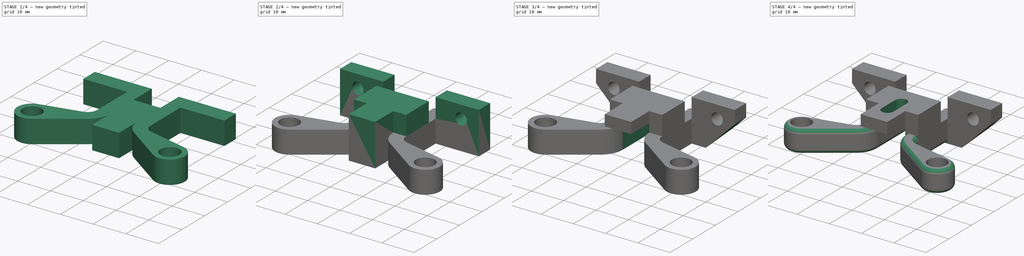
[diagram: build sequence overview — one tinted view per stage of 4, left to right]
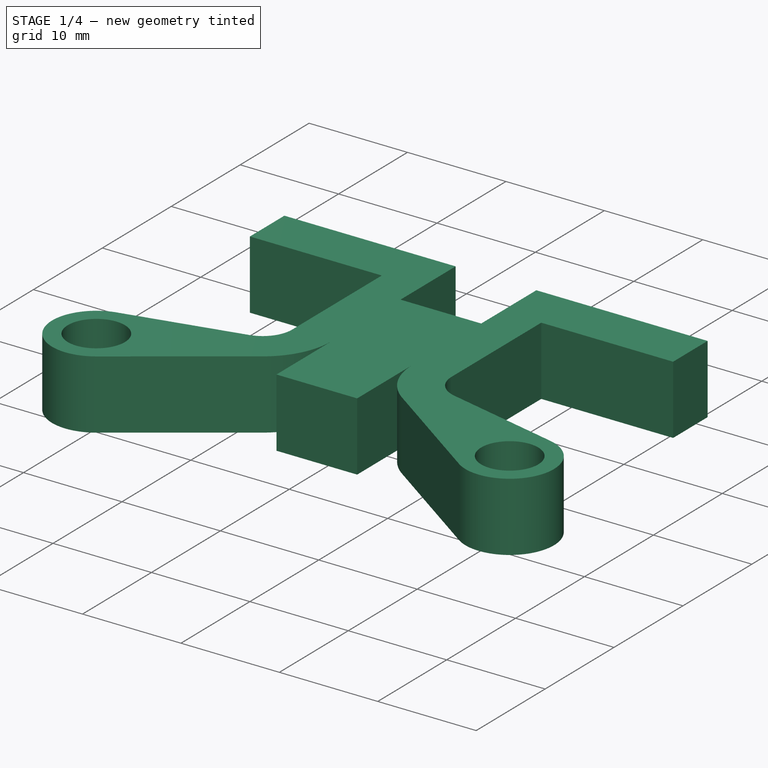
[diagram: stage 1 of 4 — iso view after this stage's code; geometry added in this stage tinted green]
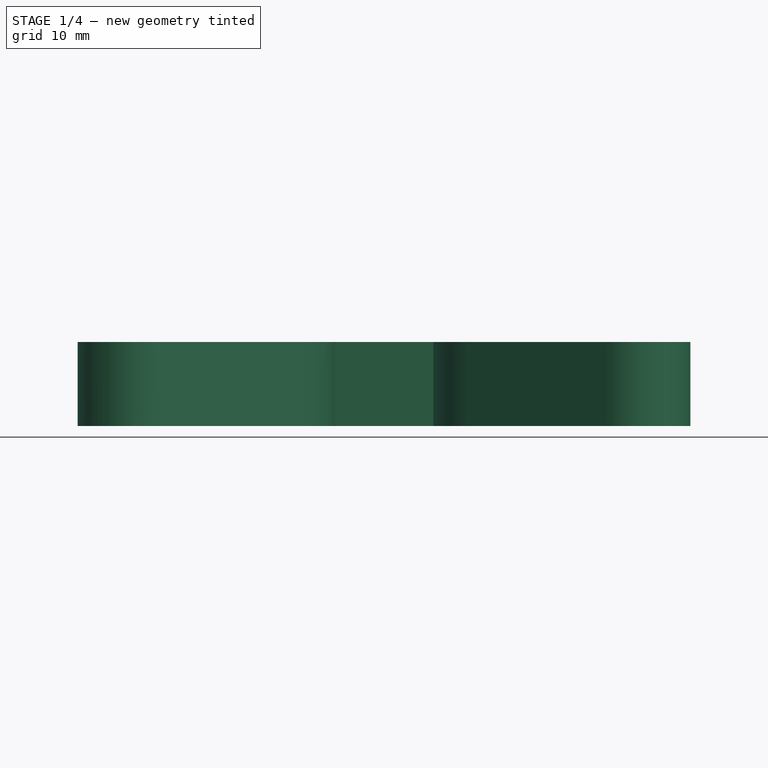
[diagram: stage 1 of 4 — front view after this stage's code; geometry added in this stage tinted green]
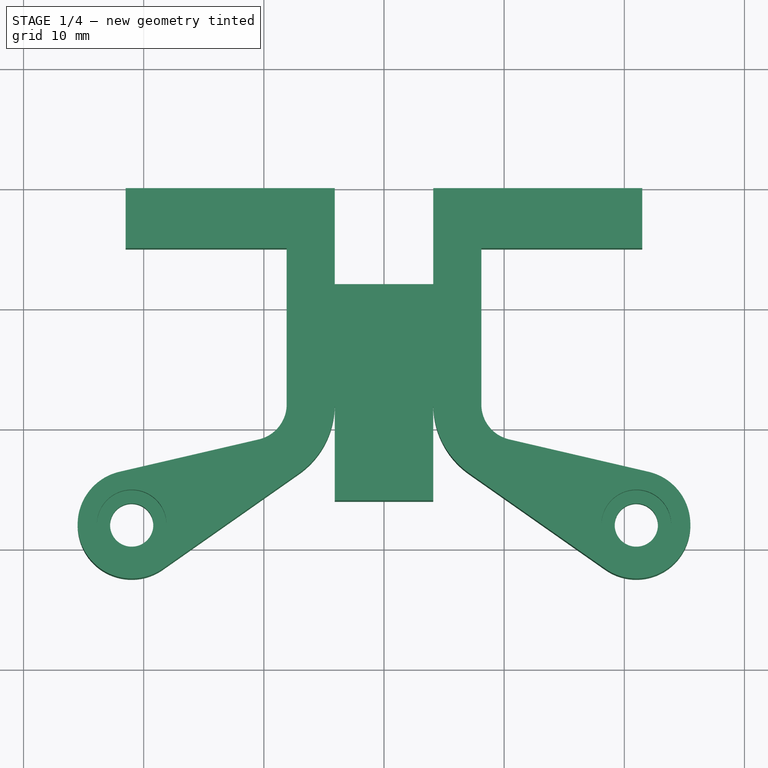
[diagram: stage 1 of 4 — top view after this stage's code; geometry added in this stage tinted green]
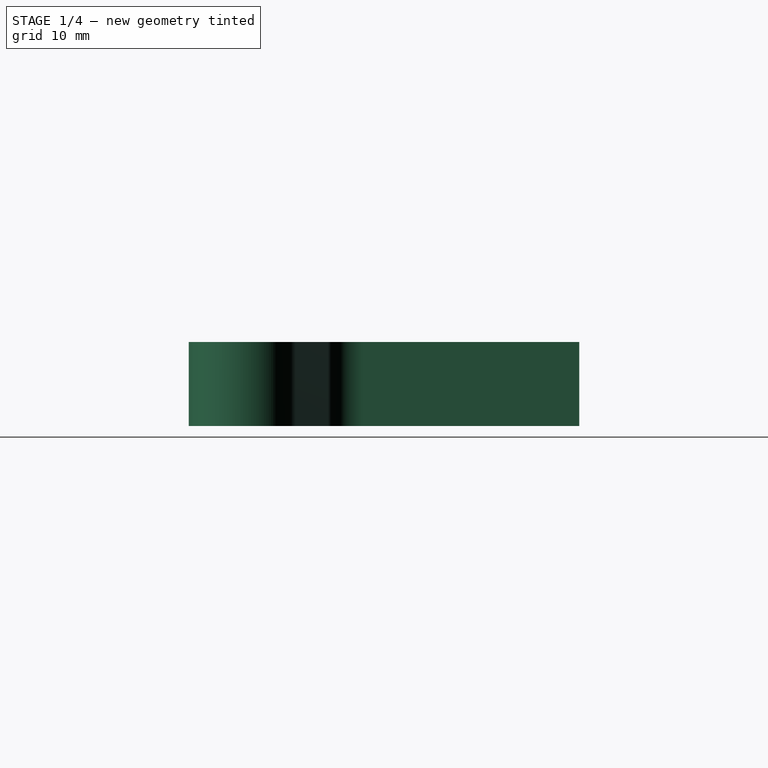
[diagram: stage 1 of 4 — right view after this stage's code; geometry added in this stage tinted green]
FCSTD DOCUMENT  (FreeCAD 1.0R39319 (Git))
Label: Dragon_GX-H8A_Rev
License: All rights reserved
LicenseURL: https://en.wikipedia.org/wiki/All_rights_reserved
objects: Sketcher::SketchObject×9, PartDesign::Pocket×6, PartDesign::Pad×3, App::VarSet×1, PartDesign::Fillet×1, PartDesign::Body×1
note: 49 computed .brp shape members not serialized (recipe doc carries the construction recipe); baked Part::Feature solids carry a one-line shape summary decoded from their .brp

FEATURE [App::VarSet] VarSet
  BaseScrewDistance = 42
  BaseScrewExternalDiameter = 9
  BaseScrewFromTop = 28
  M3HeadDiameter = 5.8
  M3HeadHeight = 3
  M3PassThroughDiameter = 3.6
  M3SelfTappingDiameter = 2.9
  SensorFixingThickness = 3.4
  SensorHeight = 13
  SensorLength = 18
  SensorOffset = 8
  SensorSupportHeight = 18
  SensorWall = 4
  SensorWidth = 8.2
  StructureHeight = 7
  TopHeight = 13
  TopScrewDistance = 32
  TopScrewFromBase = 9
  TopThickness = 5
  TopWidth = 43
FEATURE [Sketcher::SketchObject] Sketch
  ArcFitTolerance = 1e-06
  AttachmentSupport = -> [XY_Plane]
  FullyConstrained = true
  MakeInternals = false
  MapMode = 5
  expr: Constraints[21] = VarSet.SensorWidth + 2 * VarSet.SensorWall
  expr: Constraints[22] = VarSet.SensorSupportHeight - VarSet.TopThickness
  expr: Constraints[25] = VarSet.M3PassThroughDiameter
  expr: Constraints[31] = VarSet.BaseScrewFromTop
  expr: Constraints[32] = VarSet.BaseScrewDistance
  expr: Constraints[36] = VarSet.BaseScrewExternalDiameter
  expr: Constraints[42] = VarSet.SensorWall
  expr: Constraints[6] = VarSet.TopWidth
  expr: Constraints[75] = VarSet.SensorOffset
  expr: Constraints[7] = VarSet.TopThickness
  expr: Constraints[84] = VarSet.SensorLength
  sketch-geometry (35):
    g0: LineSegment StartX=-21.5 StartY=0 StartZ=0 EndX=-21.5 EndY=-5 EndZ=0
    g1: LineSegment StartX=21.5 StartY=-5 StartZ=0 EndX=21.5 EndY=0 EndZ=0
    g2: LineSegment [constr] StartX=21.5 StartY=0 StartZ=0 EndX=-21.5 EndY=0 EndZ=0
    g3: LineSegment StartX=-8.1 StartY=-5 StartZ=0 EndX=-8.1 EndY=-18 EndZ=0
    g4: LineSegment StartX=8.1 StartY=-5 StartZ=0 EndX=8.1 EndY=-18 EndZ=0
    g5: LineSegment StartX=21.5 StartY=-5 StartZ=0 EndX=8.1 EndY=-5 EndZ=0
    g6: LineSegment StartX=-21.5 StartY=-5 StartZ=0 EndX=-8.1 EndY=-5 EndZ=0
    g7: LineSegment [constr] StartX=-8.1 StartY=-5 StartZ=0 EndX=8.1 EndY=-5 EndZ=0
    g8: Circle CenterX=-21 CenterY=-28 CenterZ=0 NormalX=0 NormalY=0 NormalZ=1 AngleXU=0 Radius=1.8
    g9: Circle CenterX=21 CenterY=-28 CenterZ=0 NormalX=0 NormalY=0 NormalZ=1 AngleXU=0 Radius=1.8
    g10: LineSegment [constr] StartX=21 StartY=-28 StartZ=0 EndX=21 EndY=0 EndZ=0
    g11: LineSegment [constr] StartX=21 StartY=-28 StartZ=0 EndX=-21 EndY=-28 EndZ=0
    g12: ArcOfCircle CenterX=21 CenterY=-28 CenterZ=0 NormalX=0 NormalY=0 NormalZ=1 AngleXU=0 Radius=4.5 StartAngle=4.10058 EndAngle=7.62569
    g13: ArcOfCircle CenterX=-21 CenterY=-28 CenterZ=0 NormalX=0 NormalY=0 NormalZ=1 AngleXU=0 Radius=4.5 StartAngle=1.79909 EndAngle=5.3242
    g14: LineSegment [constr] StartX=-8.1 StartY=-18 StartZ=0 EndX=-4.1 EndY=-18 EndZ=0
    g15: LineSegment [constr] StartX=8.1 StartY=-18 StartZ=0 EndX=4.1 EndY=-18 EndZ=0
    g16: LineSegment StartX=7.07954 StartY=-23.7303 StartZ=0 EndX=18.4154 EndY=-31.6837 EndZ=0
    g17: LineSegment StartX=-7.07954 StartY=-23.7303 StartZ=0 EndX=-18.4154 EndY=-31.6837 EndZ=0
    g18: LineSegment [constr] StartX=-8.1 StartY=-18 StartZ=0 EndX=-11.1 EndY=-18 EndZ=0
    g19: LineSegment [constr] StartX=8.1 StartY=-18 StartZ=0 EndX=11.1 EndY=-18 EndZ=0
    g20: ArcOfCircle CenterX=-11.1 CenterY=-18 CenterZ=0 NormalX=0 NormalY=0 NormalZ=1 AngleXU=0 Radius=3 StartAngle=4.94068 EndAngle=6.28319
    g21: ArcOfCircle CenterX=11.1 CenterY=-18 CenterZ=0 NormalX=0 NormalY=0 NormalZ=1 AngleXU=0 Radius=3 StartAngle=3.14159 EndAngle=4.48409
    g22: LineSegment StartX=-10.421 StartY=-20.9222 StartZ=0 EndX=-22.0184 EndY=-23.6168 EndZ=0
    g23: LineSegment StartX=10.421 StartY=-20.9222 StartZ=0 EndX=22.0184 EndY=-23.6168 EndZ=0
    g24: ArcOfCircle CenterX=-11.1 CenterY=-18 CenterZ=0 NormalX=0 NormalY=0 NormalZ=1 AngleXU=0 Radius=7 StartAngle=5.3242 EndAngle=6.28319
    g25: ArcOfCircle CenterX=11.1 CenterY=-18 CenterZ=0 NormalX=0 NormalY=0 NormalZ=1 AngleXU=0 Radius=7 StartAngle=3.14159 EndAngle=4.10058
    g26: LineSegment StartX=-21.5 StartY=0 StartZ=0 EndX=-4.1 EndY=0 EndZ=0
    g27: LineSegment StartX=21.5 StartY=0 StartZ=0 EndX=4.1 EndY=0 EndZ=0
    g28: LineSegment StartX=-4.1 StartY=0 StartZ=0 EndX=-4.1 EndY=-8 EndZ=0
    g29: LineSegment StartX=4.1 StartY=0 StartZ=0 EndX=4.1 EndY=-8 EndZ=0
    g30: LineSegment StartX=-4.1 StartY=-18 StartZ=0 EndX=-4.1 EndY=-26 EndZ=0
    g31: LineSegment StartX=4.1 StartY=-18 StartZ=0 EndX=4.1 EndY=-26 EndZ=0
    g32: LineSegment StartX=-4.1 StartY=-26 StartZ=0 EndX=4.1 EndY=-26 EndZ=0
    g33: LineSegment StartX=-4.1 StartY=-8 StartZ=0 EndX=4.1 EndY=-8 EndZ=0
    g34: LineSegment [constr] StartX=-4.1 StartY=0 StartZ=0 EndX=4.1 EndY=0 EndZ=0
  constraints (90):
    c: Coincident(g1,g2)
    c: Coincident(g2,g0)
    c: Vertical(g0)
    c: Vertical(g1)
    c: PointOnObject(g0,g-1)
    c: Symmetric(g0,g1,g-1)
    c: Distance(g2) = 43
    c: Distance(g0) = 5
    c: Vertical(g3)
    c: Vertical(g4)
    c: Coincident(g5,g1)
    c: Horizontal(g5)
    c: Coincident(g6,g0)
    c: Horizontal(g6)
    c: Coincident(g3,g6)
    c: Coincident(g5,g4)
    c: Equal(g5,g6)
    c: Equal(g4,g3)
    c: Coincident(g7,g3)
    c: Coincident(g7,g4)
    c: Horizontal(g7)
    c: Distance(g7) = 16.2
    c: Distance(g4) = 13
    c: Symmetric(g9,g8,g-2)
    c: Equal(g9,g8)
    c: Diameter(g9) = 3.6
    c: Coincident(g10,g9)
    c: Vertical(g10)
    c: Coincident(g11,g9)
    c: Coincident(g11,g8)
    c: PointOnObject(g10,g-1)
    c: Distance(g10) = 28
    c: Distance(g11) = 42
    c: Coincident(g12,g9)
    c: Coincident(g13,g8)
    c: Equal(g12,g13)
    c: Diameter(g12) = 9
    c: Coincident(g14,g3)
    c: Horizontal(g14)
    c: Coincident(g15,g4)
    c: Horizontal(g15)
    c: Equal(g14,g15)
    c: Distance(g15) = 4
    c: Tangent(g16,g12) = -1.5708
    c: Tangent(g17,g13) = 1.5708
    c: Coincident(g18,g3)
    c: Horizontal(g18)
    c: Distance(g18) = 3
    c: Coincident(g19,g4)
    c: Horizontal(g19)
    c: Equal(g19,g18)
    c: Coincident(g20,g18)
    c: Coincident(g20,g3)
    c: Coincident(g21,g19)
    c: Coincident(g21,g4)
    c: Tangent(g23,g12) = 1.5708
    c: Tangent(g23,g21) = -1.5708
    c: Tangent(g22,g13) = -1.5708
    c: Tangent(g22,g20) = 1.5708
    c: Coincident(g24,g18)
    c: Coincident(g24,g14)
    c: Coincident(g25,g19)
    c: Coincident(g25,g15)
    c: Tangent(g17,g24) = 1.5708
    c: Tangent(g25,g16) = -1.5708
    c: Coincident(g26,g0)
    c: PointOnObject(g26,g2)
    c: Coincident(g27,g1)
    c: PointOnObject(g27,g2)
    c: Equal(g26,g27)
    c: Coincident(g28,g26)
    c: Vertical(g28)
    c: Coincident(g29,g27)
    c: Vertical(g29)
    c: Equal(g28,g29)
    c: Distance(g28) = 8
    c: Vertical(g30)
    c: Tangent(g30,g24)
    c: Vertical(g31)
    c: Coincident(g32,g30)
    c: Coincident(g32,g31)
    c: Coincident(g33,g28)
    c: Coincident(g33,g29)
    c: PointOnObject(g30,g14)
    c: DistanceY(g30,g28) = 18
    c: Horizontal(g32)
    c: Coincident(g15,g31)
    c: Coincident(g34,g26)
    c: Coincident(g34,g27)
    c: Equal(g34,g32)
FEATURE [PartDesign::Pad] Pad  label="Main Structure"
  Direction = (0,0,1)
  Length = 7
  Length2 = 10
  Profile = -> Sketch
  ReferenceAxis = -> Sketch [N_Axis]
  Refine = true
  Suppressed = false
  Type = 0
  expr: Length = VarSet.StructureHeight
FEATURE [Sketcher::SketchObject] Sketch001
  ArcFitTolerance = 1e-06
  AttachmentSupport = -> [Pad]
  ExternalGeometry = -> [Pad]
  FullyConstrained = true
  MakeInternals = false
  MapMode = 5
  Placement = pos=(0,0,7) rot=(0,0,1;0rad)
  expr: Constraints[3] = VarSet.M3HeadDiameter
  sketch-geometry (2):
    g0: Circle CenterX=-21 CenterY=-28 CenterZ=0 NormalX=0 NormalY=0 NormalZ=1 AngleXU=0 Radius=2.9
    g1: Circle CenterX=21 CenterY=-28 CenterZ=0 NormalX=0 NormalY=0 NormalZ=1 AngleXU=0 Radius=2.9
  constraints (4):
    c: Coincident(g0,g-4)
    c: Coincident(g1,g-3)
    c: Equal(g1,g0)
    c: Diameter(g1) = 5.8
FEATURE [PartDesign::Pocket] Pocket  label="Base Screws Head"
  BaseFeature = -> Pad
  Direction = (0,0,-1)
  Length = 3
  Length2 = 5
  Profile = -> Sketch001
  ReferenceAxis = -> Sketch001 [N_Axis]
  Refine = true
  Suppressed = false
  Type = 0
  expr: Length = VarSet.M3HeadHeight
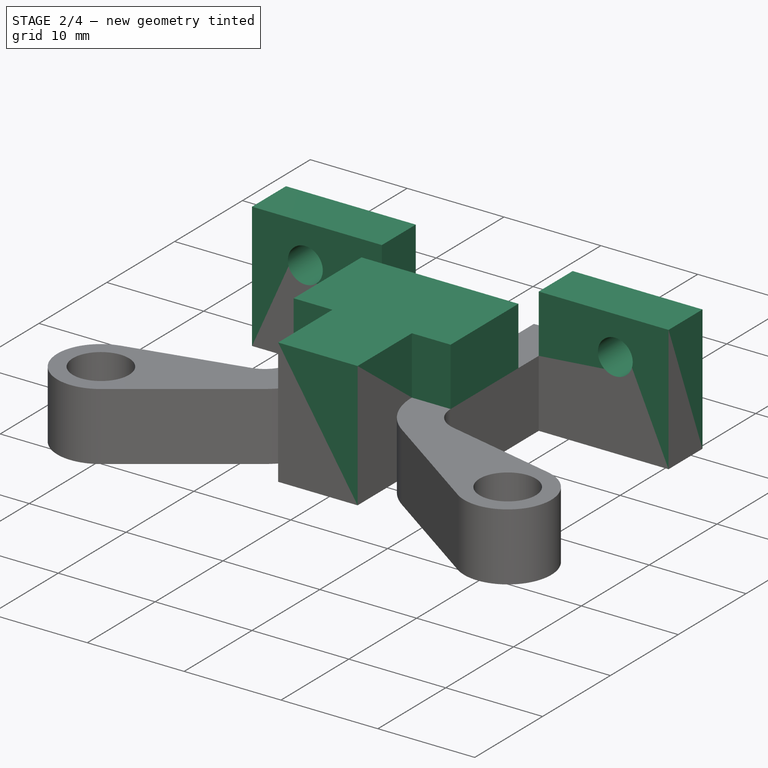
[diagram: stage 2 of 4 — iso view after this stage's code; geometry added in this stage tinted green]
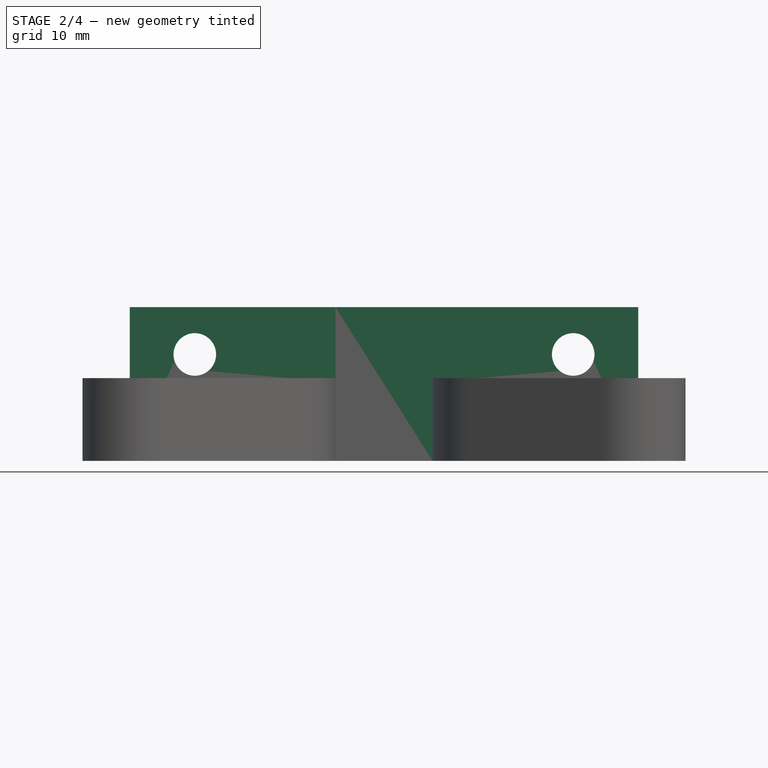
[diagram: stage 2 of 4 — front view after this stage's code; geometry added in this stage tinted green]
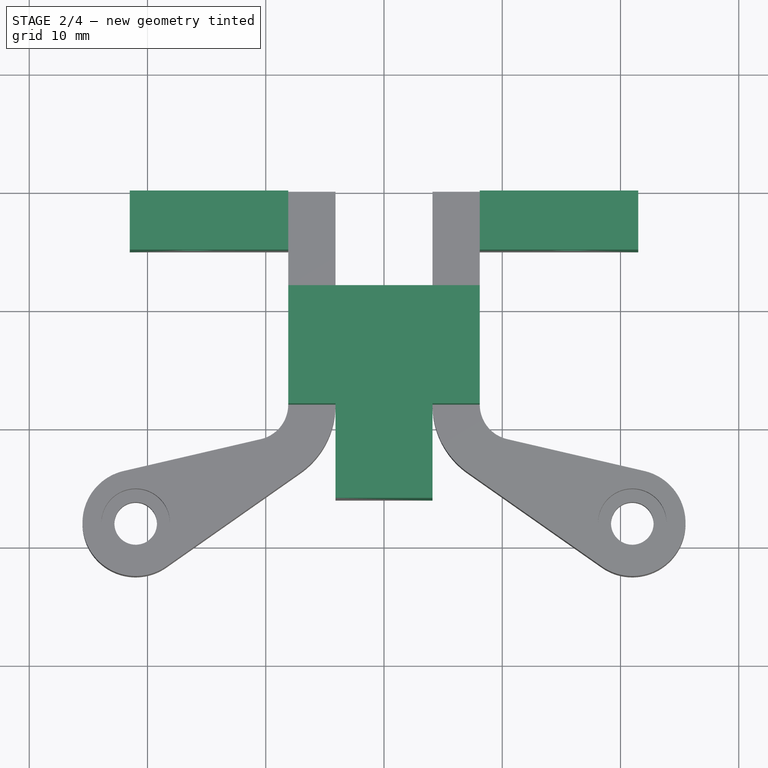
[diagram: stage 2 of 4 — top view after this stage's code; geometry added in this stage tinted green]
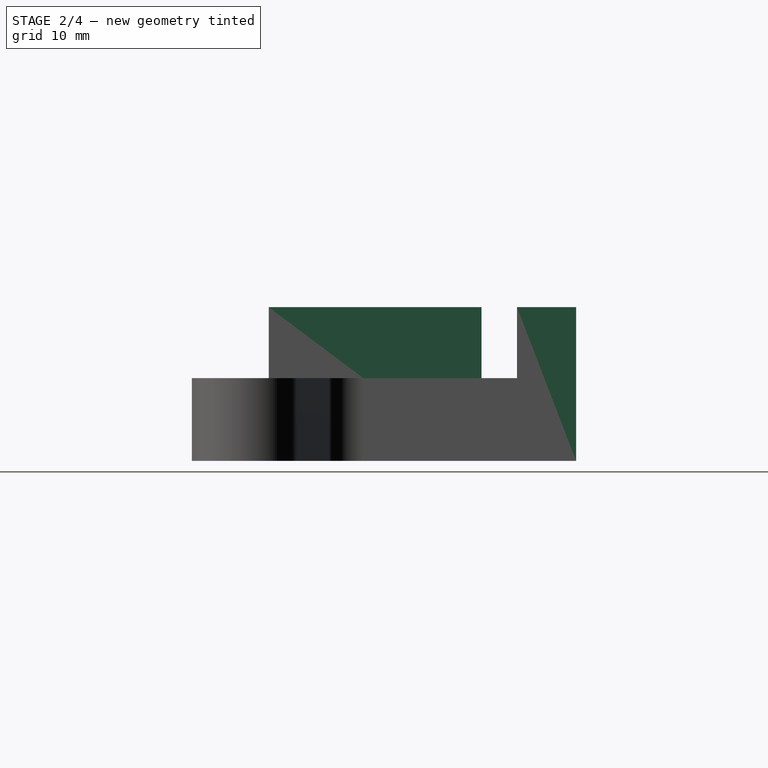
[diagram: stage 2 of 4 — right view after this stage's code; geometry added in this stage tinted green]
FEATURE [Sketcher::SketchObject] Sketch002
  ArcFitTolerance = 1e-06
  AttachmentSupport = -> [Pocket]
  ExternalGeometry = -> [Pocket]
  FullyConstrained = true
  MakeInternals = false
  MapMode = 5
  Placement = pos=(0,0,7) rot=(0,0,1;0rad)
  sketch-geometry (8):
    g0: LineSegment StartX=8.1 StartY=-5 StartZ=0 EndX=21.5 EndY=-5 EndZ=0
    g1: LineSegment StartX=21.5 StartY=-5 StartZ=0 EndX=21.5 EndY=0 EndZ=0
    g2: LineSegment StartX=21.5 StartY=0 StartZ=0 EndX=8.1 EndY=0 EndZ=0
    g3: LineSegment StartX=8.1 StartY=0 StartZ=0 EndX=8.1 EndY=-5 EndZ=0
    g4: LineSegment StartX=-8.1 StartY=-5 StartZ=0 EndX=-8.1 EndY=0 EndZ=0
    g5: LineSegment StartX=-8.1 StartY=0 StartZ=0 EndX=-21.5 EndY=0 EndZ=0
    g6: LineSegment StartX=-21.5 StartY=0 StartZ=0 EndX=-21.5 EndY=-5 EndZ=0
    g7: LineSegment StartX=-21.5 StartY=-5 StartZ=0 EndX=-8.1 EndY=-5 EndZ=0
  constraints (20):
    c: Coincident(g0,g1)
    c: Coincident(g1,g2)
    c: Coincident(g2,g3)
    c: Coincident(g3,g0)
    c: Horizontal(g2)
    c: Vertical(g1)
    c: Vertical(g3)
    c: Coincident(g0,g-4)
    c: PointOnObject(g1,g-1)
    c: Coincident(g4,g5)
    c: Coincident(g5,g6)
    c: Coincident(g6,g7)
    c: Coincident(g7,g4)
    c: Vertical(g4)
    c: Vertical(g6)
    c: Horizontal(g5)
    c: Coincident(g4,g-3)
    c: PointOnObject(g5,g-1)
    c: Coincident(g6,g-3)
    c: Coincident(g0,g-4)
FEATURE [PartDesign::Pad] Pad001  label="Top Support"
  BaseFeature = -> Pocket
  Direction = (0,0,1)
  Length = 6
  Length2 = 10
  Profile = -> Sketch002
  ReferenceAxis = -> Sketch002 [N_Axis]
  Refine = true
  Suppressed = false
  Type = 0
  expr: Length = VarSet.TopHeight - VarSet.StructureHeight
FEATURE [Sketcher::SketchObject] Sketch003
  ArcFitTolerance = 1e-06
  AttachmentSupport = -> [Pad001]
  ExternalGeometry = -> [Pad001]
  FullyConstrained = true
  MakeInternals = false
  MapMode = 5
  Placement = pos=(0,0,7) rot=(0,0,1;0rad)
  sketch-geometry (8):
    g0: LineSegment StartX=-8.1 StartY=-8 StartZ=0 EndX=-8.1 EndY=-18 EndZ=0
    g1: LineSegment StartX=-8.1 StartY=-18 StartZ=0 EndX=-4.1 EndY=-18 EndZ=0
    g2: LineSegment StartX=8.1 StartY=-18 StartZ=0 EndX=8.1 EndY=-8 EndZ=0
    g3: LineSegment StartX=8.1 StartY=-18 StartZ=0 EndX=4.1 EndY=-18 EndZ=0
    g4: LineSegment StartX=-8.1 StartY=-8 StartZ=0 EndX=8.1 EndY=-8 EndZ=0
    g5: LineSegment StartX=-4.1 StartY=-18 StartZ=0 EndX=-4.1 EndY=-26 EndZ=0
    g6: LineSegment StartX=4.1 StartY=-18 StartZ=0 EndX=4.1 EndY=-26 EndZ=0
    g7: LineSegment StartX=4.1 StartY=-26 StartZ=0 EndX=-4.1 EndY=-26 EndZ=0
  constraints (20):
    c: Vertical(g0)
    c: Coincident(g1,g0)
    c: Coincident(g3,g2)
    c: Coincident(g4,g0)
    c: Coincident(g4,g2)
    c: Coincident(g5,g1)
    c: Coincident(g6,g3)
    c: PointOnObject(g2,g-4)
    c: PointOnObject(g-5,g4)
    c: Symmetric(g2,g0,g-2)
    c: Coincident(g2,g-4)
    c: Horizontal(g3)
    c: Vertical(g6)
    c: Coincident(g6,g-3)
    c: Horizontal(g1)
    c: Vertical(g5)
    c: Coincident(g5,g-3)
    c: Equal(g2,g0)
    c: Coincident(g7,g6)
    c: Coincident(g7,g5)
FEATURE [Sketcher::SketchObject] Sketch005
  ArcFitTolerance = 1e-06
  AttachmentSupport = -> [Pad001]
  FullyConstrained = true
  MakeInternals = false
  MapMode = 5
  Placement = pos=(0,0,0) rot=(0,0.707107,0.707107;3.14159rad)
  expr: Constraints[2] = VarSet.M3PassThroughDiameter
  expr: Constraints[3] = VarSet.TopScrewDistance
  expr: Constraints[4] = VarSet.TopScrewFromBase
  sketch-geometry (2):
    g0: Circle CenterX=-16 CenterY=9 CenterZ=0 NormalX=0 NormalY=0 NormalZ=1 AngleXU=0 Radius=1.8
    g1: Circle CenterX=16 CenterY=9 CenterZ=0 NormalX=0 NormalY=0 NormalZ=1 AngleXU=0 Radius=1.8
  constraints (5):
    c: Equal(g1,g0)
    c: Symmetric(g1,g0,g-2)
    c: Diameter(g1) = 3.6
    c: Distance(g0,g1) = 32
    c: DistanceY(g-1,g1) = 9
FEATURE [PartDesign::Pocket] Pocket002  label="Top Screws Holes"
  BaseFeature = -> Pad001
  Direction = (0,-1,2e-16)
  Length = 5
  Length2 = 5
  Profile = -> Sketch005
  ReferenceAxis = -> Sketch005 [N_Axis]
  Refine = true
  Suppressed = false
  Type = 0
FEATURE [PartDesign::Pad] Pad002  label="Sensor Block"
  BaseFeature = -> Pocket002
  Direction = (0,0,1)
  Length = 6
  Length2 = 10
  Profile = -> Sketch003
  ReferenceAxis = -> Sketch003 [N_Axis]
  Refine = true
  Suppressed = false
  Type = 0
  expr: Length = VarSet.SensorHeight - VarSet.StructureHeight
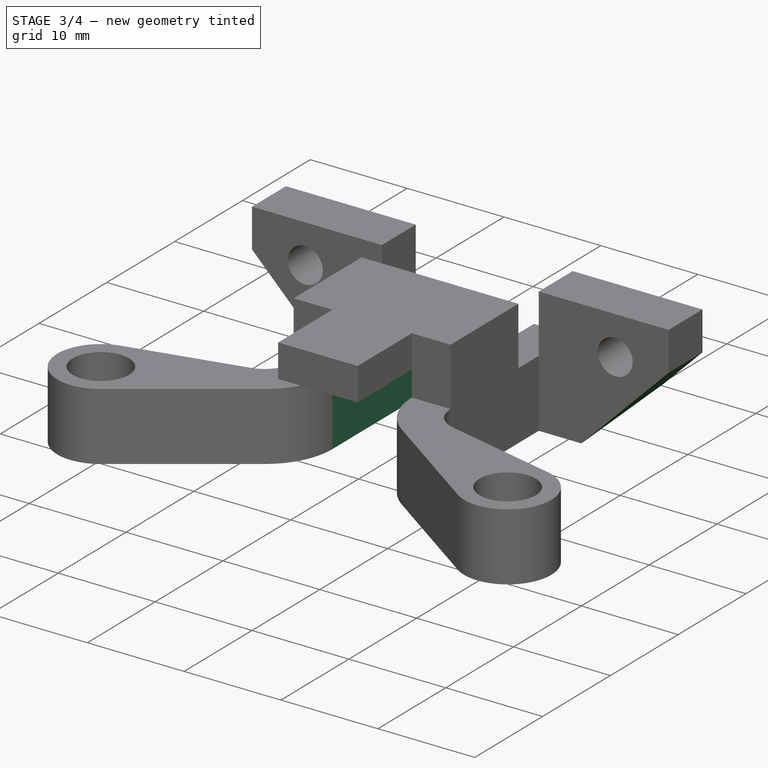
[diagram: stage 3 of 4 — iso view after this stage's code; geometry added in this stage tinted green]
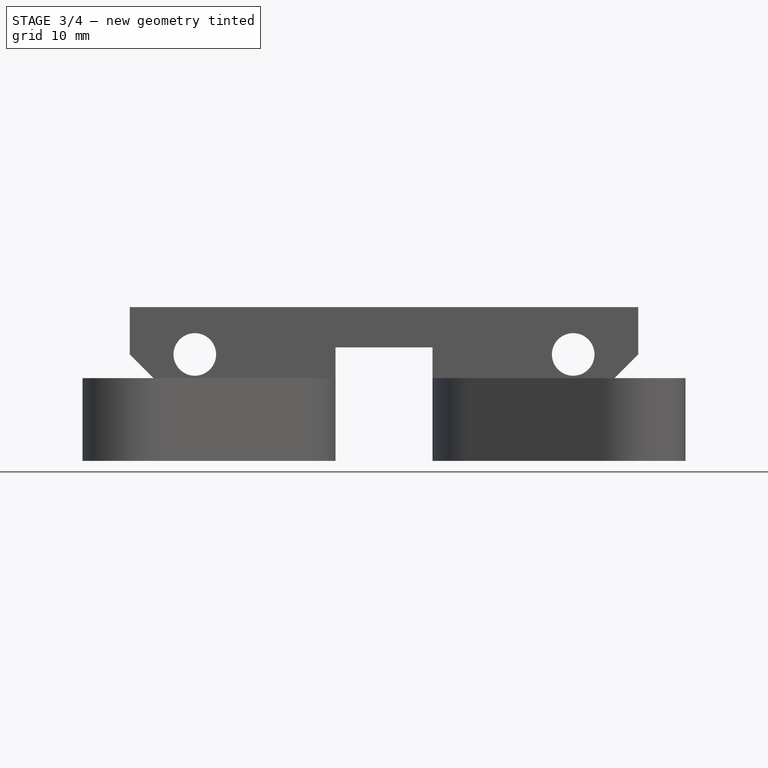
[diagram: stage 3 of 4 — front view after this stage's code; geometry added in this stage tinted green]
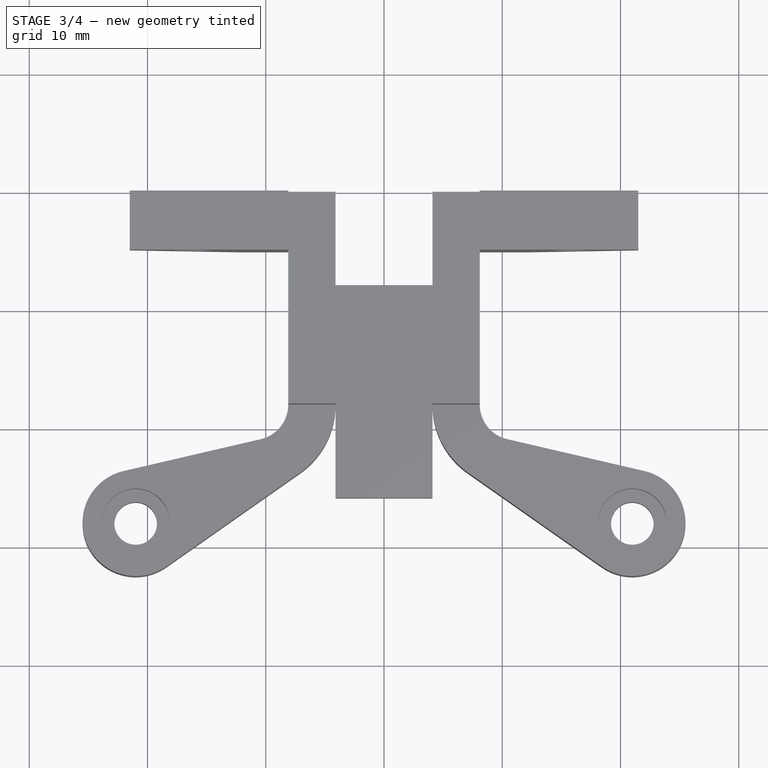
[diagram: stage 3 of 4 — top view after this stage's code; geometry added in this stage tinted green]
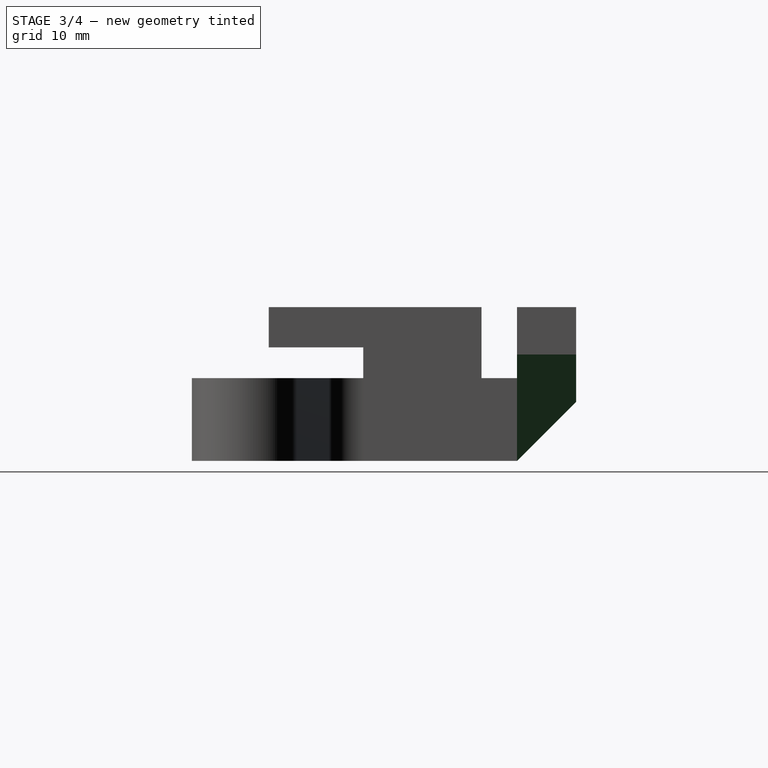
[diagram: stage 3 of 4 — right view after this stage's code; geometry added in this stage tinted green]
FEATURE [Sketcher::SketchObject] Sketch006
  ArcFitTolerance = 1e-06
  FullyConstrained = true
  MakeInternals = false
  MapMode = 5
  Placement = pos=(-21.5,0,0) rot=(0.57735,-0.57735,-0.57735;2.0944rad)
  sketch-geometry (3):
    g0: LineSegment StartX=5 StartY=0 StartZ=0 EndX=0 EndY=0 EndZ=0
    g1: LineSegment StartX=0 StartY=0 StartZ=0 EndX=0 EndY=5 EndZ=0
    g2: LineSegment StartX=0 StartY=5 StartZ=0 EndX=5 EndY=0 EndZ=0
  constraints (7):
    c: Coincident(g0,g-3)
    c: Coincident(g0,g-1)
    c: PointOnObject(g1,g-2)
    c: Equal(g1,g0)
    c: Coincident(g2,g1)
    c: Coincident(g2,g0)
    c: Coincident(g1,g0)
FEATURE [Sketcher::SketchObject] Sketch009
  ArcFitTolerance = 1e-06
  AttachmentSupport = -> [Pad002]
  ExternalGeometry = -> [Pad002]
  FullyConstrained = true
  MakeInternals = false
  MapMode = 5
  Placement = pos=(0,0,0) rot=(1,0,0;3.14159rad)
  sketch-geometry (4):
    g0: LineSegment StartX=4.1 StartY=26 StartZ=0 EndX=-4.1 EndY=26 EndZ=0
    g1: LineSegment StartX=-4.1 StartY=26 StartZ=0 EndX=-4.1 EndY=8 EndZ=0
    g2: LineSegment StartX=-4.1 StartY=8 StartZ=0 EndX=4.1 EndY=8 EndZ=0
    g3: LineSegment StartX=4.1 StartY=8 StartZ=0 EndX=4.1 EndY=26 EndZ=0
  constraints (10):
    c: Coincident(g0,g1)
    c: Coincident(g1,g2)
    c: Coincident(g2,g3)
    c: Coincident(g3,g0)
    c: Horizontal(g0)
    c: Horizontal(g2)
    c: Vertical(g1)
    c: Vertical(g3)
    c: Coincident(g0,g-3)
    c: Coincident(g1,g-4)
FEATURE [PartDesign::Pocket] Pocket006  label="Sensor Recess"
  BaseFeature = -> Pad002
  Direction = (0,0,1)
  Length = 9.6
  Length2 = 5
  Profile = -> Sketch009
  ReferenceAxis = -> Sketch009 [N_Axis]
  Refine = true
  Suppressed = false
  Type = 0
  expr: Length = VarSet.SensorHeight - VarSet.SensorFixingThickness
FEATURE [PartDesign::Pocket] Pocket003  label="Top Inclination"
  BaseFeature = -> Pocket006
  Direction = (1,-1e-16,1e-16)
  Length = 5
  Length2 = 5
  Profile = -> Sketch006
  ReferenceAxis = -> Sketch006 [N_Axis]
  Refine = true
  Suppressed = false
  Type = 1
FEATURE [Sketcher::SketchObject] Sketch007
  ArcFitTolerance = 1e-06
  AttachmentSupport = -> [Pocket003]
  ExternalGeometry = -> [Sketch]
  FullyConstrained = true
  MakeInternals = false
  MapMode = 5
  Placement = pos=(0,-5,0) rot=(1,0,0;1.5708rad)
  sketch-geometry (8):
    g0: LineSegment StartX=-21.5 StartY=0 StartZ=0 EndX=-21.5 EndY=9 EndZ=0
    g1: LineSegment StartX=21.5 StartY=0 StartZ=0 EndX=21.5 EndY=9 EndZ=0
    g2: LineSegment [constr] StartX=-8.1 StartY=0 StartZ=0 EndX=-12.5 EndY=0 EndZ=0
    g3: LineSegment [constr] StartX=8.1 StartY=0 StartZ=0 EndX=12.5 EndY=0 EndZ=0
    g4: LineSegment StartX=-21.5 StartY=0 StartZ=0 EndX=-12.5 EndY=0 EndZ=0
    g5: LineSegment StartX=12.5 StartY=0 StartZ=0 EndX=21.5 EndY=0 EndZ=0
    g6: LineSegment StartX=12.5 StartY=0 StartZ=0 EndX=21.5 EndY=9 EndZ=0
    g7: LineSegment StartX=-21.5 StartY=9 StartZ=0 EndX=-12.5 EndY=0 EndZ=0
  constraints (20):
    c: Vertical(g0)
    c: Vertical(g1)
    c: Coincident(g2,g-4)
    c: PointOnObject(g2,g-4)
    c: Coincident(g3,g-3)
    c: PointOnObject(g3,g-3)
    c: Equal(g2,g3)
    c: Coincident(g4,g0)
    c: Coincident(g4,g2)
    c: Coincident(g5,g3)
    c: Coincident(g5,g1)
    c: Coincident(g6,g3)
    c: Coincident(g6,g1)
    c: Coincident(g1,g-3)
    c: Equal(g5,g1)
    c: Coincident(g0,g-4)
    c: Coincident(g7,g0)
    c: Coincident(g7,g2)
    c: Equal(g0,g4)
    c: Distance(g5) = 9
FEATURE [PartDesign::Pocket] Pocket004  label="Second Top Inclination"
  BaseFeature = -> Pocket003
  Direction = (0,1,-2e-16)
  Length = 5
  Length2 = 5
  Profile = -> Sketch007
  ReferenceAxis = -> Sketch007 [N_Axis]
  Refine = true
  Suppressed = false
  Type = 0
  expr: Length = VarSet.TopThickness
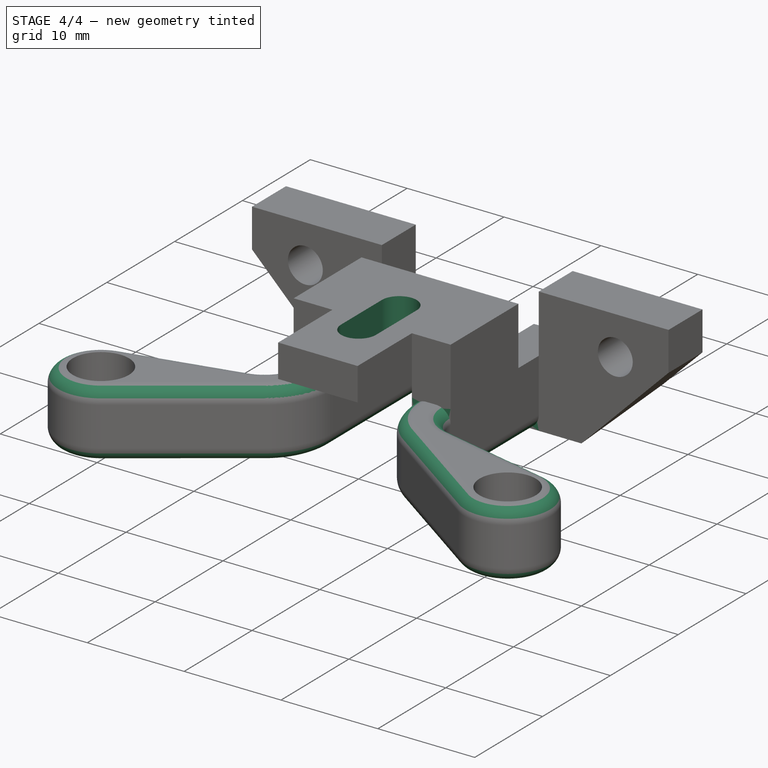
[diagram: stage 4 of 4 — iso view after this stage's code; geometry added in this stage tinted green]
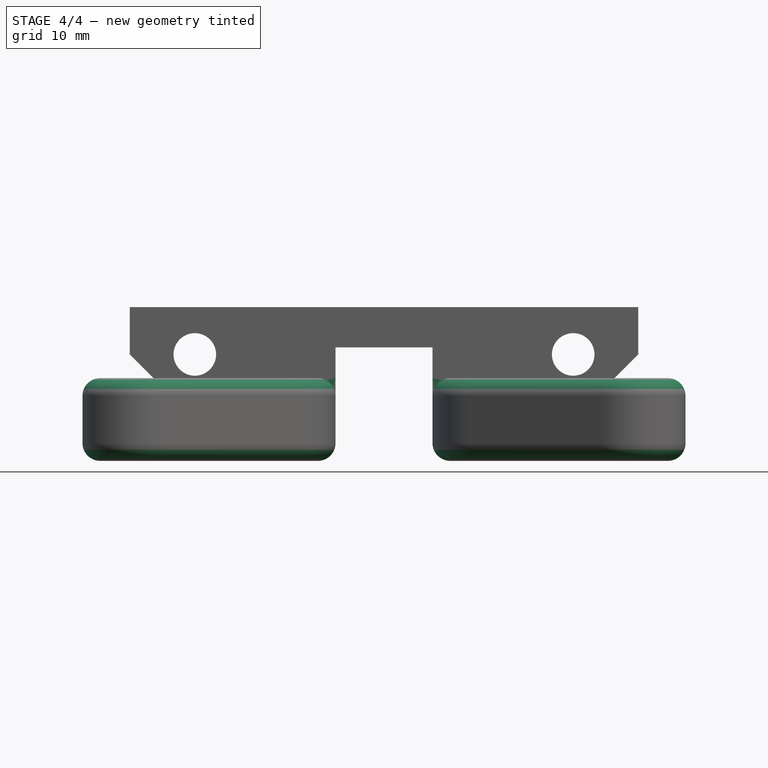
[diagram: stage 4 of 4 — front view after this stage's code; geometry added in this stage tinted green]
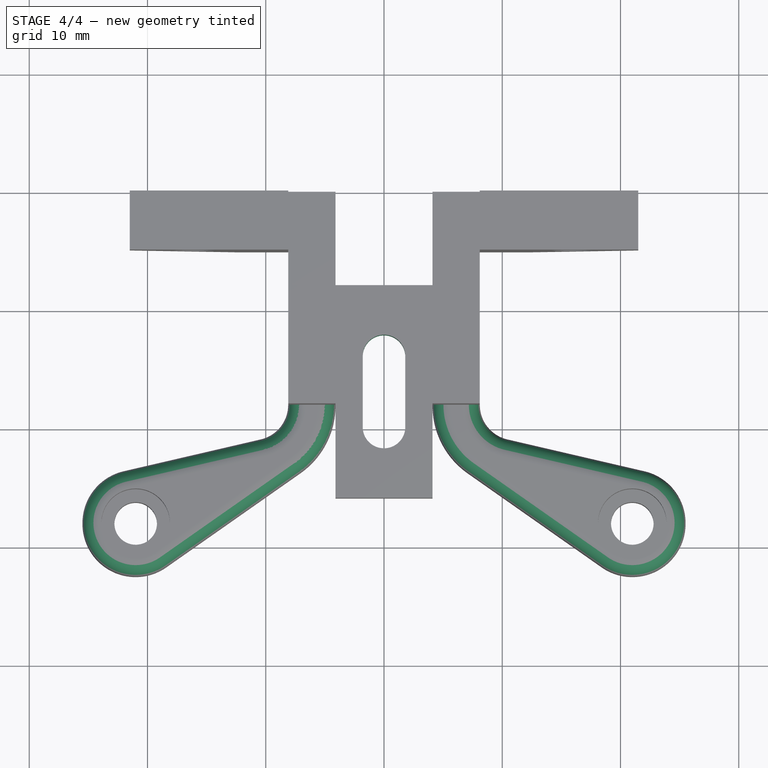
[diagram: stage 4 of 4 — top view after this stage's code; geometry added in this stage tinted green]
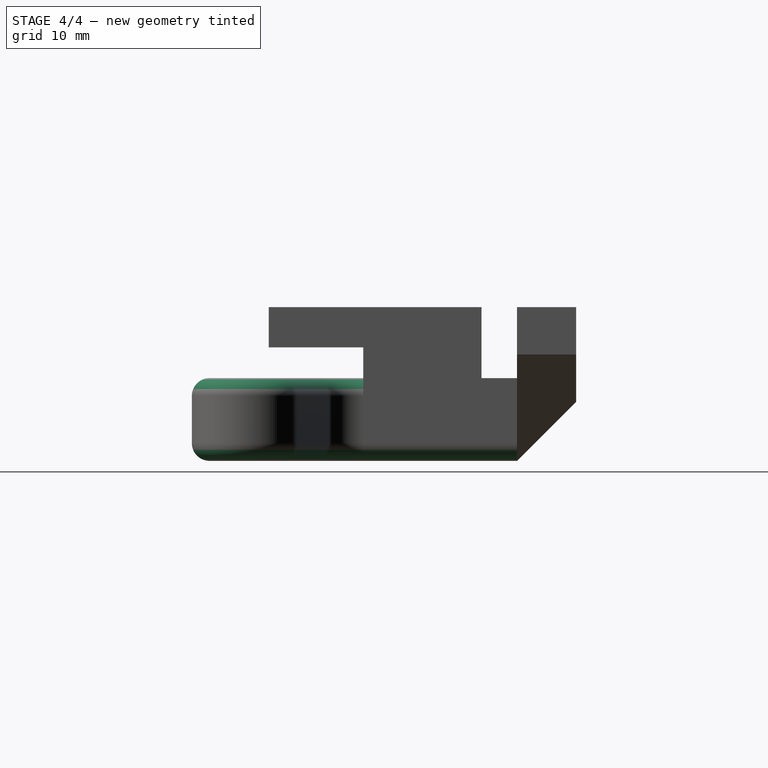
[diagram: stage 4 of 4 — right view after this stage's code; geometry added in this stage tinted green]
FEATURE [Sketcher::SketchObject] Sketch008
  ArcFitTolerance = 1e-06
  AttachmentSupport = -> [Pocket004]
  ExternalGeometry = -> [Pocket004]
  FullyConstrained = false
  MakeInternals = false
  MapMode = 5
  Placement = pos=(0,0,13) rot=(0,0,1;0rad)
  expr: Constraints[0] = VarSet.M3PassThroughDiameter
  sketch-geometry (5):
    g0: ArcOfCircle CenterX=1.46781e-11 CenterY=-14 CenterZ=0 NormalX=0 NormalY=0 NormalZ=1 AngleXU=0 Radius=1.8 StartAngle=-4.02265e-11 EndAngle=3.14159
    g1: ArcOfCircle CenterX=0 CenterY=-20 CenterZ=0 NormalX=0 NormalY=0 NormalZ=1 AngleXU=0 Radius=1.8 StartAngle=3.14159 EndAngle=6.28319
    g2: LineSegment StartX=-1.8 StartY=-14 StartZ=0 EndX=-1.8 EndY=-20 EndZ=0
    g3: LineSegment StartX=1.8 StartY=-14 StartZ=0 EndX=1.8 EndY=-20 EndZ=0
    g4: LineSegment [constr] StartX=1.46781e-11 StartY=-14 StartZ=0 EndX=4.36607e-06 EndY=-8 EndZ=0
  constraints (13):
    c: Diameter(g0) = 3.6
    c: Vertical(g2)
    c: Tangent(g1,g2) = -1.5708
    c: Tangent(g2,g0) = -1.5708
    c: Tangent(g3,g0) = 1.5708
    c: Equal(g2,g3)
    c: Coincident(g1,g3)
    c: Equal(g0,g1)
    c: PointOnObject(g1,g-2)
    c: Distance(g2) = 6
    c: Coincident(g4,g0)
    c: Distance(g4) = 6
    c: PointOnObject(g4,g-3)
FEATURE [PartDesign::Pocket] Pocket005  label="Fixing Screws Channels"
  BaseFeature = -> Pocket004
  Direction = (0,0,-1)
  Length = 5
  Length2 = 5
  Profile = -> Sketch008
  ReferenceAxis = -> Sketch008 [N_Axis]
  Refine = true
  Suppressed = false
  Type = 1
FEATURE [PartDesign::Fillet] Fillet  label="Roundings"
  Base = -> Pocket005 [Edge118,Edge3,Edge20,Edge130]
  BaseFeature = -> Pocket005
  Radius = 1.5
  Refine = true
  SupportTransform = false
  Suppressed = false
  UseAllEdges = false
FEATURE [PartDesign::Body] Body
  AllowCompound = false
  Group = -> [Sketch,Pad,Sketch001,Pocket,Sketch002,Pad001,Pocket002,Sketch005,Sketch003,Pad002,Pocket006,Sketch006,Pocket003,Sketch007,Pocket004,Sketch008,Pocket005,Sketch009,Fillet]
  Origin = -> Origin
  Tip = -> Fillet
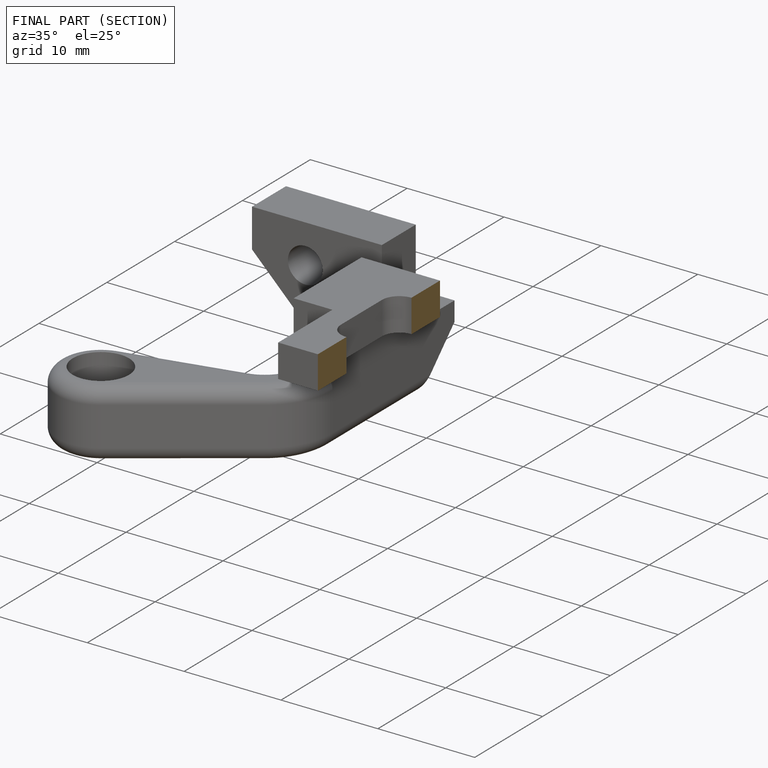
[diagram: finished part — half-section view (interior)]
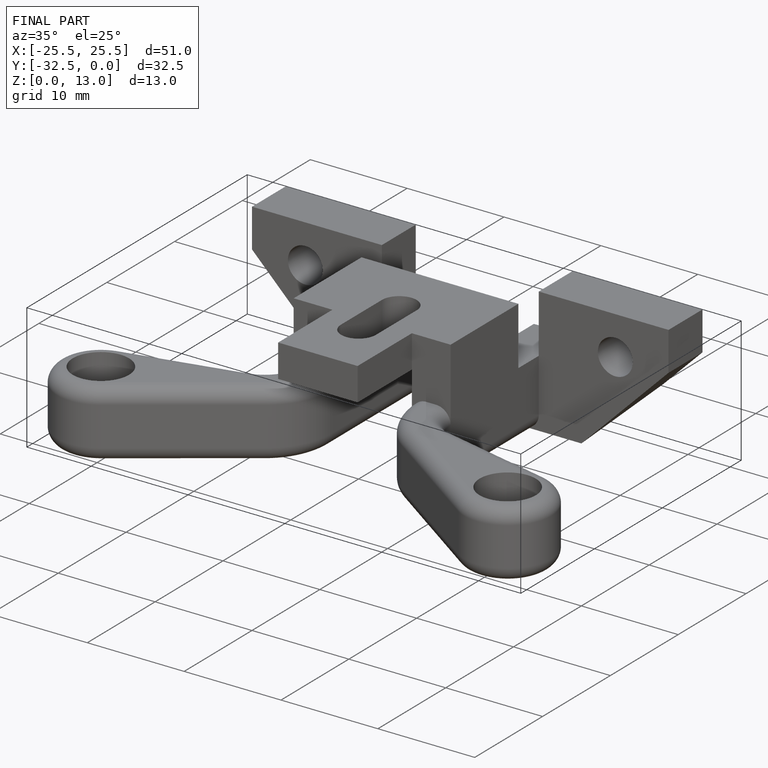
[diagram: finished part — iso view with bounding-box wireframe]
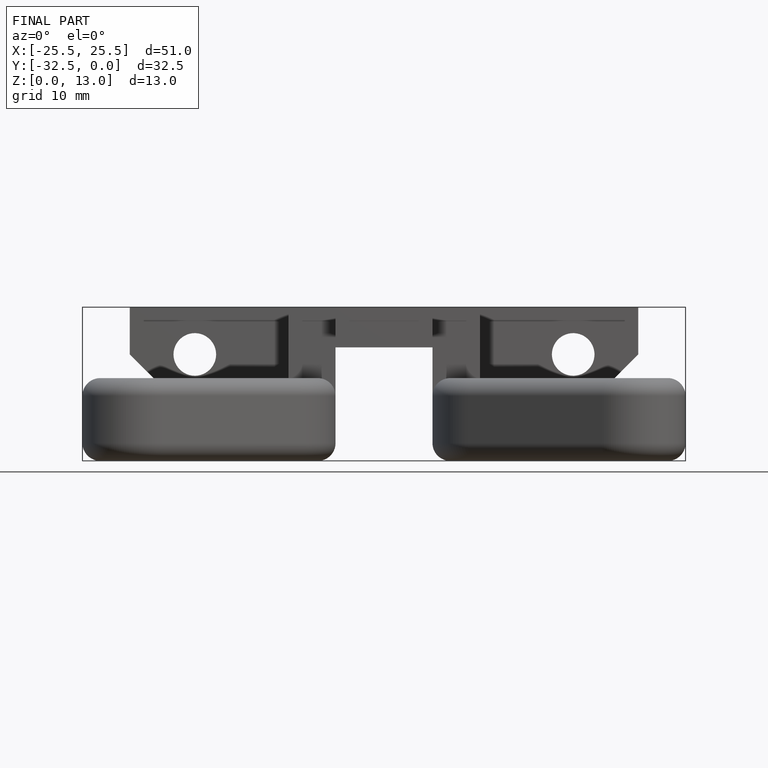
[diagram: finished part — front view with bounding-box wireframe]
